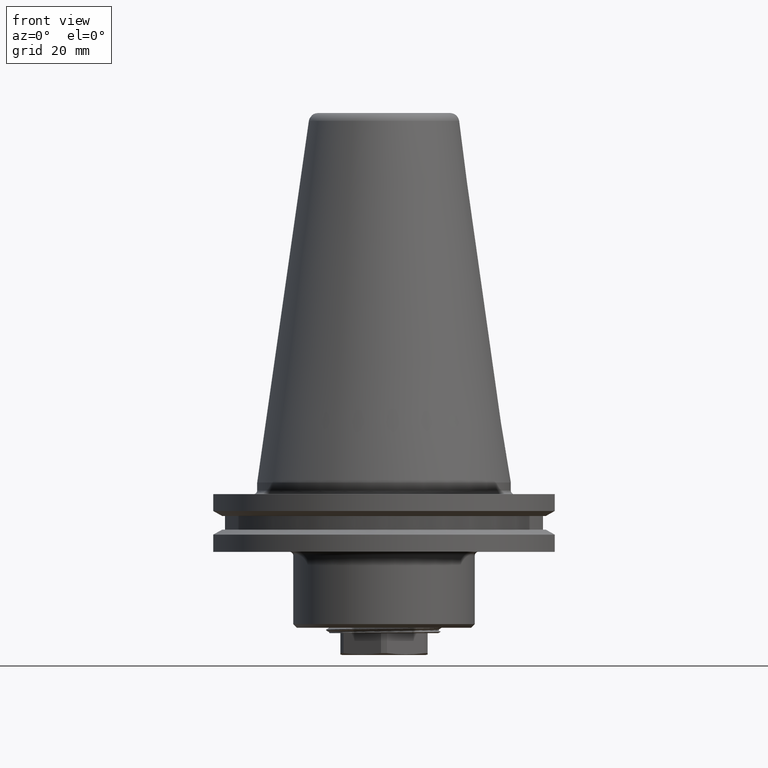
[diagram: clean part render]
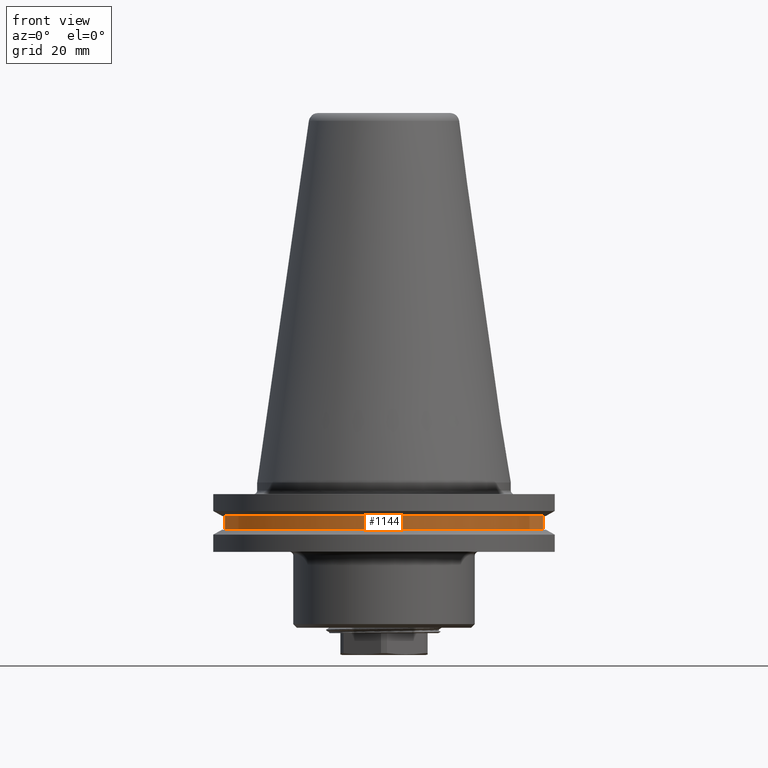
[diagram: same view with one face highlighted and labeled with its STEP entity id]
A machine part, front view. The second image highlights one B-rep face of the part: STEP entity #1144.
In plain terms, the highlighted cylindrical surface (partial cylindrical patch) has radius 45.625 mm, axis along (0, 0, -1).
Its self-contained STEP definition (entity closure, byte-faithful):
#29=LINE('',#1713,#111);
#30=LINE('',#1717,#112);
#111=VECTOR('',#1378,1000.);
#112=VECTOR('',#1381,1000.);
#217=CYLINDRICAL_SURFACE('',#1235,45.625);
#267=ORIENTED_EDGE('',*,*,#595,.F.);
#268=ORIENTED_EDGE('',*,*,#597,.T.);
#269=ORIENTED_EDGE('',*,*,#598,.T.);
#270=ORIENTED_EDGE('',*,*,#599,.T.);
#595=EDGE_CURVE('',#761,#762,#876,.T.);
#597=EDGE_CURVE('',#761,#763,#29,.F.);
#598=EDGE_CURVE('',#763,#764,#877,.T.);
#599=EDGE_CURVE('',#764,#762,#30,.T.);
#761=VERTEX_POINT('',#1708);
#762=VERTEX_POINT('',#1710);
#763=VERTEX_POINT('',#1714);
#764=VERTEX_POINT('',#1716);
#876=CIRCLE('',#1234,45.625);
#877=CIRCLE('',#1236,45.625);
#935=EDGE_LOOP('',(#267,#268,#269,#270));
#1025=FACE_BOUND('',#935,.T.);
#1144=ADVANCED_FACE('',(#1025),#217,.T.);
#1234=AXIS2_PLACEMENT_3D('',#1709,#1373,#1374);
#1235=AXIS2_PLACEMENT_3D('',#1712,#1376,#1377);
#1236=AXIS2_PLACEMENT_3D('',#1715,#1379,#1380);
#1373=DIRECTION('',(0.,0.,-1.));
#1374=DIRECTION('',(-1.,0.,0.));
#1376=DIRECTION('',(0.,0.,-1.));
#1377=DIRECTION('',(-1.,0.,0.));
#1378=DIRECTION('',(0.,0.,-1.));
#1379=DIRECTION('',(0.,0.,-1.));
#1380=DIRECTION('',(-1.,0.,0.));
#1381=DIRECTION('',(0.,0.,-1.));
#1708=CARTESIAN_POINT('',(43.7780552902936,-12.85,-12.9762410863438));
#1709=CARTESIAN_POINT('',(0.,0.,-12.9762410863438));
#1710=CARTESIAN_POINT('',(-43.7780552902936,-12.85,-12.9762410863438));
#1712=CARTESIAN_POINT('',(0.,0.,-60.));
#1713=CARTESIAN_POINT('',(43.7780552902936,-12.85,-60.));
#1714=CARTESIAN_POINT('',(43.7780552902936,-12.85,-9.22375891365622));
#1715=CARTESIAN_POINT('',(0.,0.,-9.22375891365622));
#1716=CARTESIAN_POINT('',(-43.7780552902936,-12.85,-9.22375891365622));
#1717=CARTESIAN_POINT('',(-43.7780552902936,-12.85,-60.));